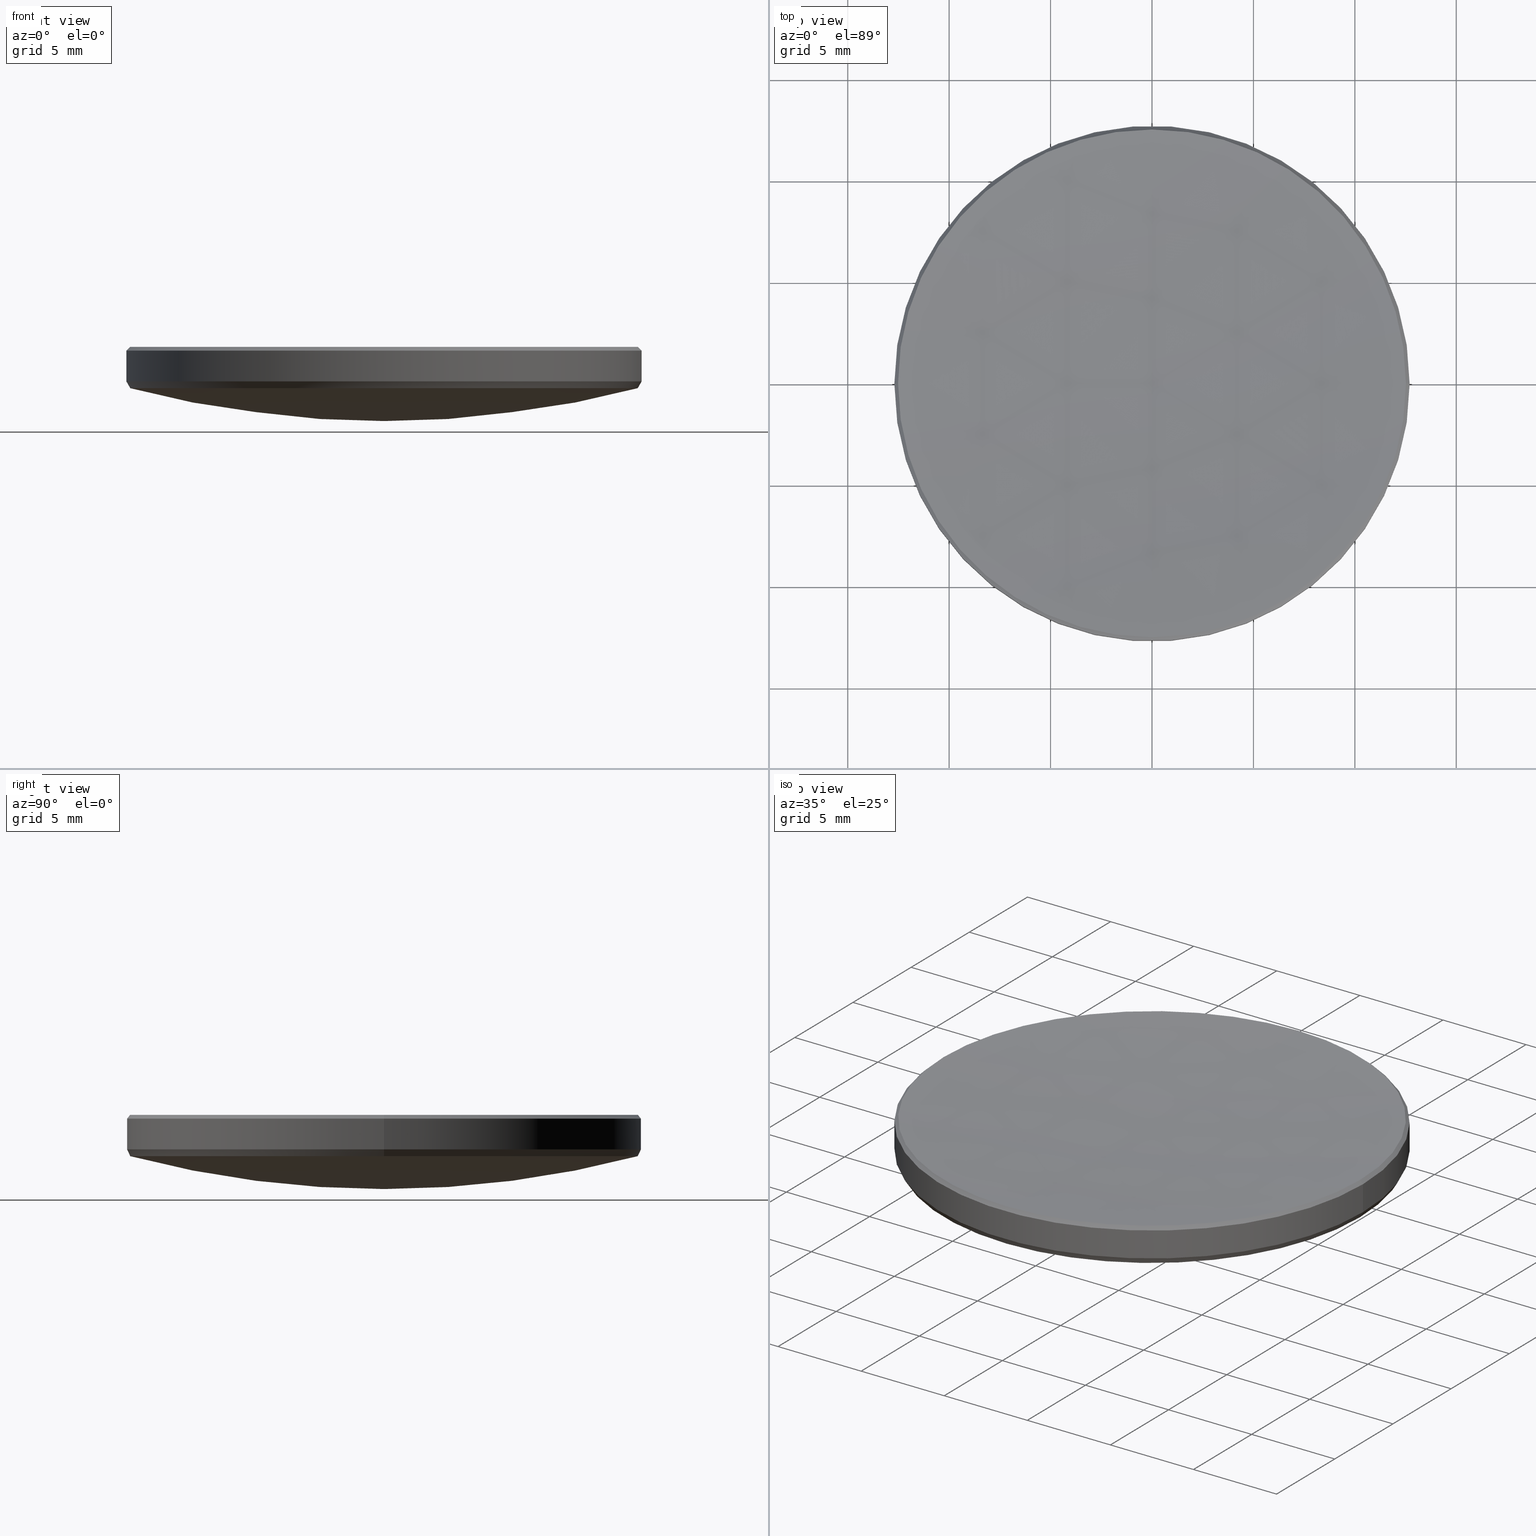
[diagram: canonical four-view strip — front | top / right | iso, engineering-drawing reading convention]
A machine part, canonical four-view strip (front | top / right | iso — engineering-drawing reading convention). The complete STEP part file that produces these views, byte-faithful:
ISO-10303-21;
HEADER;
FILE_DESCRIPTION (( 'STEP AP214' ),
    '1' );
FILE_NAME ('GLM1-025B-150-SWIR.STEP',
    '2024-08-09T02:15:49',
    ( 'Windows User' ),
    ( 'P R C' ),
    'SwSTEP 2.0',
    'SolidWorks 2022',
    '' );
FILE_SCHEMA (( 'AUTOMOTIVE_DESIGN' ));
ENDSEC;

DATA;
#1 =( NAMED_UNIT ( * ) SI_UNIT ( $, .STERADIAN. ) SOLID_ANGLE_UNIT ( ) );
#2 = VERTEX_POINT ( 'NONE', #222 ) ;
#3 = ORIENTED_EDGE ( 'NONE', *, *, #281, .T. ) ;
#4 = EDGE_LOOP ( 'NONE', ( #285, #51, #282, #128 ) ) ;
#5 = PRODUCT_DEFINITION ( 'δ֪', '', #173, #252 ) ;
#6 = ORIENTED_EDGE ( 'NONE', *, *, #74, .F. ) ;
#7 = AXIS2_PLACEMENT_3D ( 'NONE', #55, #16, #12 ) ;
#8 = CARTESIAN_POINT ( 'NONE',  ( 12.51756548749907161, 1.532959650738311713E-15, 5.982434512500911516 ) ) ;
#9 = DIRECTION ( 'NONE',  ( 1.000000000000000000, 0.000000000000000000, 0.000000000000000000 ) ) ;
#10 = CARTESIAN_POINT ( 'NONE',  ( 0.000000000000000000, 0.000000000000000000, 51.38769460524535049 ) ) ;
#11 = DIRECTION ( 'NONE',  ( 1.000000000000000000, 0.000000000000000000, 0.000000000000000000 ) ) ;
#12 = DIRECTION ( 'NONE',  ( -1.000000000000000000, 0.000000000000000000, 0.000000000000000000 ) ) ;
#13 = DIRECTION ( 'NONE',  ( 0.000000000000000000, 0.000000000000000000, -1.000000000000000000 ) ) ;
#14 = AXIS2_PLACEMENT_3D ( 'NONE', #139, #264, #213 ) ;
#15 = CARTESIAN_POINT ( 'NONE',  ( -12.69999999999999929, 0.000000000000000000, 10.00000000000000000 ) ) ;
#16 = DIRECTION ( 'NONE',  ( -0.000000000000000000, -0.000000000000000000, -1.000000000000000000 ) ) ;
#17 = EDGE_CURVE ( 'NONE', #177, #46, #191, .T. ) ;
#18 = CARTESIAN_POINT ( 'NONE',  ( 0.000000000000000000, 0.000000000000000000, 51.38769460524535049 ) ) ;
#19 = MECHANICAL_DESIGN_GEOMETRIC_PRESENTATION_REPRESENTATION (  '', ( #58 ), #81 ) ;
#20 =( NAMED_UNIT ( * ) PLANE_ANGLE_UNIT ( ) SI_UNIT ( $, .RADIAN. ) );
#21 = AXIS2_PLACEMENT_3D ( 'NONE', #190, #321, #36 ) ;
#22 = VERTEX_POINT ( 'NONE', #66 ) ;
#23 = ORIENTED_EDGE ( 'NONE', *, *, #146, .T. ) ;
#24 = VERTEX_POINT ( 'NONE', #34 ) ;
#25 = AXIS2_PLACEMENT_3D ( 'NONE', #56, #67, #166 ) ;
#26 = ADVANCED_FACE ( 'NONE', ( #293 ), #39, .T. ) ;
#27 = ORIENTED_EDGE ( 'NONE', *, *, #242, .F. ) ;
#28 = ORIENTED_EDGE ( 'NONE', *, *, #208, .F. ) ;
#29 = DIRECTION ( 'NONE',  ( -1.000000000000000000, 0.000000000000000000, 0.000000000000000000 ) ) ;
#30 = CIRCLE ( 'NONE', #261, 12.50710445798774728 ) ;
#31 = DIRECTION ( 'NONE',  ( -0.7071067811865777708, 0.000000000000000000, -0.7071067811865172636 ) ) ;
#32 =( LENGTH_UNIT ( ) NAMED_UNIT ( * ) SI_UNIT ( .MILLI., .METRE. ) );
#33 = CARTESIAN_POINT ( 'NONE',  ( 0.000000000000000000, 0.000000000000000000, 4.282866881517001900 ) ) ;
#34 = CARTESIAN_POINT ( 'NONE',  ( -12.51756548749907694, 0.000000000000000000, 5.982434512500911516 ) ) ;
#35 = CARTESIAN_POINT ( 'NONE',  ( 0.000000000000000000, 0.000000000000000000, 5.982434512500911516 ) ) ;
#36 = DIRECTION ( 'NONE',  ( -1.224646799147353207E-16, -1.000000000000000000, 0.000000000000000000 ) ) ;
#37 = DIRECTION ( 'NONE',  ( -0.000000000000000000, -0.000000000000000000, 1.000000000000000000 ) ) ;
#38 = CARTESIAN_POINT ( 'NONE',  ( 12.69999999999999929, 1.555301434917138433E-15, 5.799999999999999822 ) ) ;
#39 = CONICAL_SURFACE ( 'NONE', #296, 12.51756548749907161, 0.7853981633974911336 ) ;
#40 = VECTOR ( 'NONE', #31, 1000.000000000000000 ) ;
#41 = PRODUCT_DEFINITION_SHAPE ( 'NONE', 'NONE',  #5 ) ;
#42 = CARTESIAN_POINT ( 'NONE',  ( -12.69999999999999929, 0.000000000000000000, 4.282866881517001900 ) ) ;
#43 = ADVANCED_FACE ( 'NONE', ( #240 ), #273, .T. ) ;
#44 = AXIS2_PLACEMENT_3D ( 'NONE', #218, #214, #216 ) ;
#45 = DIRECTION ( 'NONE',  ( 1.000000000000000000, 0.000000000000000000, 0.000000000000000000 ) ) ;
#46 = VERTEX_POINT ( 'NONE', #38 ) ;
#47 = AXIS2_PLACEMENT_3D ( 'NONE', #18, #221, #61 ) ;
#48 = SURFACE_SIDE_STYLE ('',( #278 ) ) ;
#49 = ORIENTED_EDGE ( 'NONE', *, *, #319, .T. ) ;
#50 = EDGE_LOOP ( 'NONE', ( #210, #49, #77, #207 ) ) ;
#51 = ORIENTED_EDGE ( 'NONE', *, *, #247, .T. ) ;
#52 = STYLED_ITEM ( 'NONE', ( #103 ), #199 ) ;
#53 = VERTEX_POINT ( 'NONE', #238 ) ;
#54 = CARTESIAN_POINT ( 'NONE',  ( 0.000000000000000000, 0.000000000000000000, 136.9455749538715850 ) ) ;
#55 = CARTESIAN_POINT ( 'NONE',  ( 0.000000000000000000, 0.000000000000000000, 10.00000000000000000 ) ) ;
#56 = CARTESIAN_POINT ( 'NONE',  ( 0.000000000000000000, 0.000000000000000000, 3.948723936848863580 ) ) ;
#57 = DIRECTION ( 'NONE',  ( -0.000000000000000000, -0.000000000000000000, 1.000000000000000000 ) ) ;
#58 = STYLED_ITEM ( 'NONE', ( #274 ), #262 ) ;
#59 = DIRECTION ( 'NONE',  ( 1.000000000000000000, 0.000000000000000000, 0.000000000000000000 ) ) ;
#60 = DIRECTION ( 'NONE',  ( -1.000000000000000000, 1.224646799147353207E-16, 0.000000000000000000 ) ) ;
#61 = DIRECTION ( 'NONE',  ( 0.000000000000000000, 1.000000000000000000, 0.000000000000000000 ) ) ;
#62 = SPHERICAL_SURFACE ( 'NONE', #87, 131.5600000000000023 ) ;
#63 = DIRECTION ( 'NONE',  ( 0.000000000000000000, 0.000000000000000000, -1.000000000000000000 ) ) ;
#64 = ADVANCED_FACE ( 'NONE', ( #286 ), #62, .F. ) ;
#65 = UNCERTAINTY_MEASURE_WITH_UNIT (LENGTH_MEASURE( 1.000000000000000082E-05 ), #98, 'distance_accuracy_value', 'NONE');
#66 = CARTESIAN_POINT ( 'NONE',  ( 12.51756548749907694, 1.544130542827725172E-15, 5.982434512500911516 ) ) ;
#67 = DIRECTION ( 'NONE',  ( 0.000000000000000000, 0.000000000000000000, -1.000000000000000000 ) ) ;
#68 = SPHERICAL_SURFACE ( 'NONE', #47, 49.05999999999999517 ) ;
#69 = CIRCLE ( 'NONE', #88, 12.51756548749907694 ) ;
#70 = VECTOR ( 'NONE', #289, 1000.000000000000000 ) ;
#71 = FACE_OUTER_BOUND ( 'NONE', #4, .T. ) ;
#72 = AXIS2_PLACEMENT_3D ( 'NONE', #248, #45, #175 ) ;
#73 = SURFACE_STYLE_FILL_AREA ( #304 ) ;
#74 = EDGE_CURVE ( 'NONE', #277, #180, #324, .T. ) ;
#75 = ORIENTED_EDGE ( 'NONE', *, *, #266, .T. ) ;
#76 = CONICAL_SURFACE ( 'NONE', #123, 12.51756548749907161, 0.7853981633974911336 ) ;
#77 = ORIENTED_EDGE ( 'NONE', *, *, #135, .T. ) ;
#78 = ADVANCED_FACE ( 'NONE', ( #92 ), #120, .T. ) ;
#79 = ORIENTED_EDGE ( 'NONE', *, *, #271, .F. ) ;
#80 = ORIENTED_EDGE ( 'NONE', *, *, #146, .F. ) ;
#81 =( GEOMETRIC_REPRESENTATION_CONTEXT ( 3 ) GLOBAL_UNCERTAINTY_ASSIGNED_CONTEXT ( ( #65 ) ) GLOBAL_UNIT_ASSIGNED_CONTEXT ( ( #98, #20, #179 ) ) REPRESENTATION_CONTEXT ( 'NONE', 'WORKASPACE' ) );
#82 = DIRECTION ( 'NONE',  ( 0.000000000000000000, 0.000000000000000000, -1.000000000000000000 ) ) ;
#83 = CYLINDRICAL_SURFACE ( 'NONE', #7, 12.69999999999999929 ) ;
#84 = LINE ( 'NONE', #159, #211 ) ;
#85 = FACE_OUTER_BOUND ( 'NONE', #253, .T. ) ;
#86 = DIRECTION ( 'NONE',  ( 0.000000000000000000, 0.000000000000000000, -1.000000000000000000 ) ) ;
#87 = AXIS2_PLACEMENT_3D ( 'NONE', #54, #143, #318 ) ;
#88 = AXIS2_PLACEMENT_3D ( 'NONE', #115, #57, #249 ) ;
#89 = PRESENTATION_LAYER_ASSIGNMENT (  '', '', ( #52 ) ) ;
#90 = CARTESIAN_POINT ( 'NONE',  ( -12.51756548749907161, 0.000000000000000000, 5.982434512500911516 ) ) ;
#91 = ADVANCED_FACE ( 'NONE', ( #186 ), #83, .T. ) ;
#92 = FACE_OUTER_BOUND ( 'NONE', #196, .T. ) ;
#93 = PRODUCT ( 'GLM1-025B-150-SWIR', 'GLM1-025B-150-SWIR', '', ( #300 ) ) ;
#94 = CARTESIAN_POINT ( 'NONE',  ( -12.69999999999999929, 0.000000000000000000, 5.799999999999999822 ) ) ;
#95 = DIRECTION ( 'NONE',  ( 1.000000000000000000, 0.000000000000000000, 0.000000000000000000 ) ) ;
#97 = ADVANCED_FACE ( 'NONE', ( #156 ), #269, .T. ) ;
#96 = AXIS2_PLACEMENT_3D ( 'NONE', #305, #181, #86 ) ;
#98 =( LENGTH_UNIT ( ) NAMED_UNIT ( * ) SI_UNIT ( .MILLI., .METRE. ) );
#99 = FILL_AREA_STYLE_COLOUR ( '', #172 ) ;
#100 = COLOUR_RGB ( '',1.000000000000000000, 1.000000000000000000, 1.000000000000000000 ) ;
#101 = EDGE_CURVE ( 'NONE', #234, #180, #212, .T. ) ;
#102 = CARTESIAN_POINT ( 'NONE',  ( 0.000000000000000000, 0.000000000000000000, 0.000000000000000000 ) ) ;
#103 = PRESENTATION_STYLE_ASSIGNMENT (( #250 ) ) ;
#104 = VERTEX_POINT ( 'NONE', #236 ) ;
#105 = DIRECTION ( 'NONE',  ( 1.000000000000000000, 0.000000000000000000, 0.000000000000000000 ) ) ;
#106 = EDGE_CURVE ( 'NONE', #256, #234, #84, .T. ) ;
#107 = ORIENTED_EDGE ( 'NONE', *, *, #201, .T. ) ;
#108 = ORIENTED_EDGE ( 'NONE', *, *, #227, .F. ) ;
#109 = ORIENTED_EDGE ( 'NONE', *, *, #17, .T. ) ;
#110 = ORIENTED_EDGE ( 'NONE', *, *, #313, .F. ) ;
#111 = CIRCLE ( 'NONE', #279, 12.51756548749907694 ) ;
#112 = AXIS2_PLACEMENT_3D ( 'NONE', #102, #203, #105 ) ;
#113 = DIRECTION ( 'NONE',  ( 0.7071067811865777708, 8.659560562355303869E-17, -0.7071067811865172636 ) ) ;
#114 = LINE ( 'NONE', #263, #154 ) ;
#115 = CARTESIAN_POINT ( 'NONE',  ( 0.000000000000000000, 0.000000000000000000, 5.982434512500911516 ) ) ;
#116 = LINE ( 'NONE', #8, #237 ) ;
#117 = DIRECTION ( 'NONE',  ( -0.4999572784161532835, 6.122710807227642125E-17, 0.8660500676974242085 ) ) ;
#118 = AXIS2_PLACEMENT_3D ( 'NONE', #138, #320, #241 ) ;
#119 = AXIS2_PLACEMENT_3D ( 'NONE', #270, #200, #299 ) ;
#120 = SPHERICAL_SURFACE ( 'NONE', #302, 49.05999999999999517 ) ;
#121 = EDGE_CURVE ( 'NONE', #22, #46, #116, .T. ) ;
#122 = DIRECTION ( 'NONE',  ( 0.000000000000000000, 1.000000000000000000, 0.000000000000000000 ) ) ;
#123 = AXIS2_PLACEMENT_3D ( 'NONE', #223, #63, #164 ) ;
#124 = EDGE_CURVE ( 'NONE', #53, #277, #125, .T. ) ;
#125 = CIRCLE ( 'NONE', #44, 12.50710445798774728 ) ;
#126 = ORIENTED_EDGE ( 'NONE', *, *, #306, .F. ) ;
#127 = ORIENTED_EDGE ( 'NONE', *, *, #124, .F. ) ;
#128 = ORIENTED_EDGE ( 'NONE', *, *, #242, .T. ) ;
#129 = EDGE_LOOP ( 'NONE', ( #126, #251, #206, #315, #233 ) ) ;
#130 = VERTEX_POINT ( 'NONE', #316 ) ;
#131 = EDGE_CURVE ( 'NONE', #24, #177, #136, .T. ) ;
#132 = DIRECTION ( 'NONE',  ( -0.000000000000000000, -0.000000000000000000, 1.000000000000000000 ) ) ;
#133 = CIRCLE ( 'NONE', #314, 49.05999999999999517 ) ;
#134 = DIRECTION ( 'NONE',  ( -1.000000000000000000, 0.000000000000000000, 0.000000000000000000 ) ) ;
#135 = EDGE_CURVE ( 'NONE', #2, #22, #111, .T. ) ;
#136 = LINE ( 'NONE', #90, #40 ) ;
#137 = CYLINDRICAL_SURFACE ( 'NONE', #14, 12.69999999999999929 ) ;
#138 = CARTESIAN_POINT ( 'NONE',  ( 0.000000000000000000, 0.000000000000000000, 4.282866881517001900 ) ) ;
#139 = CARTESIAN_POINT ( 'NONE',  ( 0.000000000000000000, 0.000000000000000000, 10.00000000000000000 ) ) ;
#140 = DIRECTION ( 'NONE',  ( 1.000000000000000000, 0.000000000000000000, 0.000000000000000000 ) ) ;
#141 = AXIS2_PLACEMENT_3D ( 'NONE', #295, #225, #95 ) ;
#142 = UNCERTAINTY_MEASURE_WITH_UNIT (LENGTH_MEASURE( 1.000000000000000082E-05 ), #32, 'distance_accuracy_value', 'NONE');
#143 = DIRECTION ( 'NONE',  ( -1.000000000000000000, 0.000000000000000000, 0.000000000000000000 ) ) ;
#144 = FACE_OUTER_BOUND ( 'NONE', #209, .T. ) ;
#145 = CIRCLE ( 'NONE', #141, 12.50710445798774728 ) ;
#146 = EDGE_CURVE ( 'NONE', #180, #234, #255, .T. ) ;
#147 = SHAPE_DEFINITION_REPRESENTATION ( #41, #199 ) ;
#148 = ORIENTED_EDGE ( 'NONE', *, *, #227, .T. ) ;
#149 = ADVANCED_FACE ( 'NONE', ( #71 ), #246, .F. ) ;
#150 = VERTEX_POINT ( 'NONE', #325 ) ;
#151 = EDGE_LOOP ( 'NONE', ( #109, #3, #310, #108 ) ) ;
#152 = ORIENTED_EDGE ( 'NONE', *, *, #271, .T. ) ;
#153 = VECTOR ( 'NONE', #117, 1000.000000000000000 ) ;
#154 = VECTOR ( 'NONE', #317, 1000.000000000000000 ) ;
#155 = ORIENTED_EDGE ( 'NONE', *, *, #182, .T. ) ;
#156 = FACE_OUTER_BOUND ( 'NONE', #230, .T. ) ;
#157 = DIRECTION ( 'NONE',  ( -0.000000000000000000, -0.000000000000000000, 1.000000000000000000 ) ) ;
#158 = DIRECTION ( 'NONE',  ( 0.000000000000000000, 0.000000000000000000, -1.000000000000000000 ) ) ;
#159 = CARTESIAN_POINT ( 'NONE',  ( 12.69999999999999929, 0.000000000000000000, 4.282866881517001900 ) ) ;
#160 = APPLICATION_CONTEXT ( 'automotive_design' ) ;
#161 = CARTESIAN_POINT ( 'NONE',  ( -12.50710445798774728, 1.543489989512383738E-15, 3.948723936848863580 ) ) ;
#162 = CIRCLE ( 'NONE', #72, 131.5600000000000023 ) ;
#163 = ORIENTED_EDGE ( 'NONE', *, *, #292, .T. ) ;
#164 = DIRECTION ( 'NONE',  ( -1.000000000000000000, 0.000000000000000000, 0.000000000000000000 ) ) ;
#165 = DIRECTION ( 'NONE',  ( 0.4999572784161532835, 0.000000000000000000, 0.8660500676974242085 ) ) ;
#166 = DIRECTION ( 'NONE',  ( 1.000000000000000000, 0.000000000000000000, 0.000000000000000000 ) ) ;
#167 = DIRECTION ( 'NONE',  ( 0.000000000000000000, 0.000000000000000000, -1.000000000000000000 ) ) ;
#168 = CARTESIAN_POINT ( 'NONE',  ( 0.000000000000000000, 0.000000000000000000, 5.982434512500911516 ) ) ;
#169 = CLOSED_SHELL ( 'NONE', ( #303, #43, #64, #78, #329, #91, #187, #149, #97, #26 ) ) ;
#170 = CIRCLE ( 'NONE', #25, 12.50710445798774728 ) ;
#171 = SURFACE_STYLE_USAGE ( .BOTH. , #48 ) ;
#172 = COLOUR_RGB ( '',1.000000000000000000, 1.000000000000000000, 1.000000000000000000 ) ;
#173 = PRODUCT_DEFINITION_FORMATION_WITH_SPECIFIED_SOURCE ( '�κ�', '', #93, .NOT_KNOWN. ) ;
#174 = EDGE_LOOP ( 'NONE', ( #332, #107, #148, #23 ) ) ;
#175 = DIRECTION ( 'NONE',  ( 0.000000000000000000, 0.000000000000000000, -1.000000000000000000 ) ) ;
#176 = CIRCLE ( 'NONE', #96, 49.05999999999999517 ) ;
#177 = VERTEX_POINT ( 'NONE', #94 ) ;
#178 = ORIENTED_EDGE ( 'NONE', *, *, #17, .F. ) ;
#179 =( NAMED_UNIT ( * ) SI_UNIT ( $, .STERADIAN. ) SOLID_ANGLE_UNIT ( ) );
#180 = VERTEX_POINT ( 'NONE', #42 ) ;
#181 = DIRECTION ( 'NONE',  ( 1.000000000000000000, -0.000000000000000000, 0.000000000000000000 ) ) ;
#182 = EDGE_CURVE ( 'NONE', #256, #53, #145, .T. ) ;
#183 = ORIENTED_EDGE ( 'NONE', *, *, #201, .F. ) ;
#184 = AXIS2_PLACEMENT_3D ( 'NONE', #294, #82, #59 ) ;
#185 = DIRECTION ( 'NONE',  ( 0.000000000000000000, 1.000000000000000000, 0.000000000000000000 ) ) ;
#186 = FACE_OUTER_BOUND ( 'NONE', #174, .T. ) ;
#187 = ADVANCED_FACE ( 'NONE', ( #144 ), #68, .T. ) ;
#188 = CARTESIAN_POINT ( 'NONE',  ( 0.000000000000000000, 0.000000000000000000, 3.948723936848863580 ) ) ;
#189 = CARTESIAN_POINT ( 'NONE',  ( 0.000000000000000000, 0.000000000000000000, 5.982434512500911516 ) ) ;
#190 = CARTESIAN_POINT ( 'NONE',  ( 0.000000000000000000, 0.000000000000000000, 136.9455749538715850 ) ) ;
#191 = CIRCLE ( 'NONE', #184, 12.69999999999999929 ) ;
#192 = AXIS2_PLACEMENT_3D ( 'NONE', #35, #157, #9 ) ;
#193 = FACE_OUTER_BOUND ( 'NONE', #151, .T. ) ;
#194 = DIRECTION ( 'NONE',  ( 1.000000000000000000, 0.000000000000000000, 0.000000000000000000 ) ) ;
#195 = CARTESIAN_POINT ( 'NONE',  ( 0.000000000000000000, 0.000000000000000000, 5.982434512500911516 ) ) ;
#196 = EDGE_LOOP ( 'NONE', ( #204, #152, #307, #232 ) ) ;
#197 =( LENGTH_UNIT ( ) NAMED_UNIT ( * ) SI_UNIT ( .MILLI., .METRE. ) );
#198 = CARTESIAN_POINT ( 'NONE',  ( 12.69999999999999929, 1.555301434917138433E-15, 4.282866881517001900 ) ) ;
#199 = ADVANCED_BREP_SHAPE_REPRESENTATION ( 'GLM1-025B-150-SWIR', ( #262, #112 ), #275 ) ;
#200 = DIRECTION ( 'NONE',  ( -0.000000000000000000, -0.000000000000000000, 1.000000000000000000 ) ) ;
#201 = EDGE_CURVE ( 'NONE', #46, #177, #330, .T. ) ;
#202 = SURFACE_SIDE_STYLE ('',( #73 ) ) ;
#203 = DIRECTION ( 'NONE',  ( 0.000000000000000000, 0.000000000000000000, 1.000000000000000000 ) ) ;
#204 = ORIENTED_EDGE ( 'NONE', *, *, #266, .F. ) ;
#205 = AXIS2_PLACEMENT_3D ( 'NONE', #272, #326, #122 ) ;
#206 = ORIENTED_EDGE ( 'NONE', *, *, #101, .F. ) ;
#207 = ORIENTED_EDGE ( 'NONE', *, *, #313, .T. ) ;
#208 = EDGE_CURVE ( 'NONE', #267, #24, #228, .T. ) ;
#209 = EDGE_LOOP ( 'NONE', ( #79, #75, #163, #155 ) ) ;
#210 = ORIENTED_EDGE ( 'NONE', *, *, #247, .F. ) ;
#211 = VECTOR ( 'NONE', #165, 1000.000000000000000 ) ;
#212 = CIRCLE ( 'NONE', #291, 12.69999999999999929 ) ;
#213 = DIRECTION ( 'NONE',  ( -1.000000000000000000, 0.000000000000000000, 0.000000000000000000 ) ) ;
#214 = DIRECTION ( 'NONE',  ( 0.000000000000000000, 0.000000000000000000, -1.000000000000000000 ) ) ;
#215 = APPLICATION_CONTEXT ( 'automotive_design' ) ;
#216 = DIRECTION ( 'NONE',  ( 1.000000000000000000, 0.000000000000000000, 0.000000000000000000 ) ) ;
#217 =( NAMED_UNIT ( * ) PLANE_ANGLE_UNIT ( ) SI_UNIT ( $, .RADIAN. ) );
#218 = CARTESIAN_POINT ( 'NONE',  ( 0.000000000000000000, 0.000000000000000000, 3.948723936848863580 ) ) ;
#219 = CARTESIAN_POINT ( 'NONE',  ( 0.000000000000000000, 12.51756548749897568, 5.982434512500911516 ) ) ;
#220 = CIRCLE ( 'NONE', #192, 12.51756548749907694 ) ;
#221 = DIRECTION ( 'NONE',  ( -1.000000000000000000, 0.000000000000000000, 0.000000000000000000 ) ) ;
#222 = CARTESIAN_POINT ( 'NONE',  ( -1.532959650738299683E-15, -12.51756548749897568, 5.982434512500911516 ) ) ;
#223 = CARTESIAN_POINT ( 'NONE',  ( 0.000000000000000000, 0.000000000000000000, 5.982434512500911516 ) ) ;
#224 = CARTESIAN_POINT ( 'NONE',  ( 0.000000000000000000, 0.000000000000000000, 5.799999999999999822 ) ) ;
#225 = DIRECTION ( 'NONE',  ( 0.000000000000000000, 0.000000000000000000, -1.000000000000000000 ) ) ;
#226 = AXIS2_PLACEMENT_3D ( 'NONE', #195, #37, #140 ) ;
#227 = EDGE_CURVE ( 'NONE', #177, #180, #244, .T. ) ;
#228 = CIRCLE ( 'NONE', #226, 12.51756548749907694 ) ;
#229 =( NAMED_UNIT ( * ) PLANE_ANGLE_UNIT ( ) SI_UNIT ( $, .RADIAN. ) );
#230 = EDGE_LOOP ( 'NONE', ( #6, #127, #254, #312, #80 ) ) ;
#231 = APPLICATION_PROTOCOL_DEFINITION ( 'draft international standard', 'automotive_design', 1998, #160 ) ;
#232 = ORIENTED_EDGE ( 'NONE', *, *, #306, .T. ) ;
#233 = ORIENTED_EDGE ( 'NONE', *, *, #292, .F. ) ;
#234 = VERTEX_POINT ( 'NONE', #198 ) ;
#235 = ORIENTED_EDGE ( 'NONE', *, *, #121, .F. ) ;
#236 = CARTESIAN_POINT ( 'NONE',  ( 0.000000000000000000, 8.055726644791288963E-15, 5.385574953871569370 ) ) ;
#237 = VECTOR ( 'NONE', #113, 1000.000000000000000 ) ;
#238 = CARTESIAN_POINT ( 'NONE',  ( -1.531678544107628650E-15, -12.50710445798775083, 3.948723936848860028 ) ) ;
#239 = CARTESIAN_POINT ( 'NONE',  ( 0.000000000000000000, 0.000000000000000000, 51.38769460524535049 ) ) ;
#240 = FACE_OUTER_BOUND ( 'NONE', #129, .T. ) ;
#241 = DIRECTION ( 'NONE',  ( 1.000000000000000000, 0.000000000000000000, 0.000000000000000000 ) ) ;
#242 = EDGE_CURVE ( 'NONE', #24, #2, #69, .T. ) ;
#243 =( GEOMETRIC_REPRESENTATION_CONTEXT ( 3 ) GLOBAL_UNCERTAINTY_ASSIGNED_CONTEXT ( ( #298 ) ) GLOBAL_UNIT_ASSIGNED_CONTEXT ( ( #197, #229, #1 ) ) REPRESENTATION_CONTEXT ( 'NONE', 'WORKASPACE' ) );
#244 = LINE ( 'NONE', #15, #70 ) ;
#245 = CARTESIAN_POINT ( 'NONE',  ( -12.69999999999999929, 1.555301434917138433E-15, 4.282866881517001900 ) ) ;
#246 = SPHERICAL_SURFACE ( 'NONE', #205, 131.5600000000000023 ) ;
#247 = EDGE_CURVE ( 'NONE', #104, #267, #162, .T. ) ;
#248 = CARTESIAN_POINT ( 'NONE',  ( 0.000000000000000000, 0.000000000000000000, 136.9455749538715850 ) ) ;
#249 = DIRECTION ( 'NONE',  ( 1.000000000000000000, 0.000000000000000000, 0.000000000000000000 ) ) ;
#250 = SURFACE_STYLE_USAGE ( .BOTH. , #202 ) ;
#251 = ORIENTED_EDGE ( 'NONE', *, *, #74, .T. ) ;
#252 = PRODUCT_DEFINITION_CONTEXT ( 'detailed design', #215, 'design' ) ;
#253 = EDGE_LOOP ( 'NONE', ( #110, #280, #178, #287, #28 ) ) ;
#254 = ORIENTED_EDGE ( 'NONE', *, *, #182, .F. ) ;
#255 = CIRCLE ( 'NONE', #119, 12.69999999999999929 ) ;
#256 = VERTEX_POINT ( 'NONE', #331 ) ;
#257 =( NAMED_UNIT ( * ) SI_UNIT ( $, .STERADIAN. ) SOLID_ANGLE_UNIT ( ) );
#258 = EDGE_LOOP ( 'NONE', ( #235, #283, #27, #311, #183 ) ) ;
#259 = DIRECTION ( 'NONE',  ( -0.000000000000000000, -0.000000000000000000, 1.000000000000000000 ) ) ;
#260 = DIRECTION ( 'NONE',  ( 1.000000000000000000, 0.000000000000000000, 0.000000000000000000 ) ) ;
#261 = AXIS2_PLACEMENT_3D ( 'NONE', #188, #158, #11 ) ;
#262 = MANIFOLD_SOLID_BREP ( '����1', #169 ) ;
#263 = CARTESIAN_POINT ( 'NONE',  ( 12.69999999999999929, 1.555301434917138433E-15, 10.00000000000000000 ) ) ;
#264 = DIRECTION ( 'NONE',  ( -0.000000000000000000, -0.000000000000000000, -1.000000000000000000 ) ) ;
#265 = CARTESIAN_POINT ( 'NONE',  ( 0.000000000000000000, 0.000000000000000000, 4.282866881517001900 ) ) ;
#266 = EDGE_CURVE ( 'NONE', #150, #130, #176, .T. ) ;
#267 = VERTEX_POINT ( 'NONE', #219 ) ;
#268 = DIRECTION ( 'NONE',  ( -1.000000000000000000, 0.000000000000000000, 0.000000000000000000 ) ) ;
#269 = CONICAL_SURFACE ( 'NONE', #327, 12.69999999999999929, 0.5235494456648849271 ) ;
#270 = CARTESIAN_POINT ( 'NONE',  ( 0.000000000000000000, 0.000000000000000000, 4.282866881517001900 ) ) ;
#271 = EDGE_CURVE ( 'NONE', #150, #53, #133, .T. ) ;
#272 = CARTESIAN_POINT ( 'NONE',  ( 0.000000000000000000, 0.000000000000000000, 136.9455749538715850 ) ) ;
#273 = CONICAL_SURFACE ( 'NONE', #118, 12.69999999999999929, 0.5235494456648849271 ) ;
#274 = PRESENTATION_STYLE_ASSIGNMENT (( #171 ) ) ;
#275 =( GEOMETRIC_REPRESENTATION_CONTEXT ( 3 ) GLOBAL_UNCERTAINTY_ASSIGNED_CONTEXT ( ( #142 ) ) GLOBAL_UNIT_ASSIGNED_CONTEXT ( ( #32, #217, #257 ) ) REPRESENTATION_CONTEXT ( 'NONE', 'WORKASPACE' ) );
#276 = PRODUCT_RELATED_PRODUCT_CATEGORY ( 'part', '', ( #93 ) ) ;
#277 = VERTEX_POINT ( 'NONE', #161 ) ;
#278 = SURFACE_STYLE_FILL_AREA ( #301 ) ;
#279 = AXIS2_PLACEMENT_3D ( 'NONE', #189, #290, #194 ) ;
#280 = ORIENTED_EDGE ( 'NONE', *, *, #121, .T. ) ;
#281 = EDGE_CURVE ( 'NONE', #46, #234, #114, .T. ) ;
#282 = ORIENTED_EDGE ( 'NONE', *, *, #208, .T. ) ;
#283 = ORIENTED_EDGE ( 'NONE', *, *, #135, .F. ) ;
#284 = PRESENTATION_LAYER_ASSIGNMENT (  '', '', ( #58 ) ) ;
#285 = ORIENTED_EDGE ( 'NONE', *, *, #319, .F. ) ;
#286 = FACE_OUTER_BOUND ( 'NONE', #50, .T. ) ;
#287 = ORIENTED_EDGE ( 'NONE', *, *, #131, .F. ) ;
#288 = DIRECTION ( 'NONE',  ( -1.224646799147353207E-16, -1.000000000000000000, 0.000000000000000000 ) ) ;
#289 = DIRECTION ( 'NONE',  ( -0.000000000000000000, -0.000000000000000000, -1.000000000000000000 ) ) ;
#290 = DIRECTION ( 'NONE',  ( -0.000000000000000000, -0.000000000000000000, 1.000000000000000000 ) ) ;
#291 = AXIS2_PLACEMENT_3D ( 'NONE', #265, #132, #29 ) ;
#292 = EDGE_CURVE ( 'NONE', #130, #256, #30, .T. ) ;
#293 = FACE_OUTER_BOUND ( 'NONE', #258, .T. ) ;
#294 = CARTESIAN_POINT ( 'NONE',  ( 0.000000000000000000, 0.000000000000000000, 5.799999999999999822 ) ) ;
#295 = CARTESIAN_POINT ( 'NONE',  ( 0.000000000000000000, 0.000000000000000000, 3.948723936848863580 ) ) ;
#296 = AXIS2_PLACEMENT_3D ( 'NONE', #168, #13, #268 ) ;
#297 = DIRECTION ( 'NONE',  ( 1.000000000000000000, 0.000000000000000000, 0.000000000000000000 ) ) ;
#298 = UNCERTAINTY_MEASURE_WITH_UNIT (LENGTH_MEASURE( 1.000000000000000082E-05 ), #197, 'distance_accuracy_value', 'NONE');
#299 = DIRECTION ( 'NONE',  ( -1.000000000000000000, 0.000000000000000000, 0.000000000000000000 ) ) ;
#300 = PRODUCT_CONTEXT ( 'NONE', #160, 'mechanical' ) ;
#301 = FILL_AREA_STYLE ('',( #328 ) ) ;
#303 = ADVANCED_FACE ( 'NONE', ( #85 ), #76, .T. ) ;
#302 = AXIS2_PLACEMENT_3D ( 'NONE', #10, #134, #185 ) ;
#304 = FILL_AREA_STYLE ('',( #99 ) ) ;
#305 = CARTESIAN_POINT ( 'NONE',  ( 0.000000000000000000, 0.000000000000000000, 51.38769460524535049 ) ) ;
#306 = EDGE_CURVE ( 'NONE', #277, #130, #170, .T. ) ;
#307 = ORIENTED_EDGE ( 'NONE', *, *, #124, .T. ) ;
#308 = AXIS2_PLACEMENT_3D ( 'NONE', #224, #167, #297 ) ;
#309 = APPLICATION_PROTOCOL_DEFINITION ( 'draft international standard', 'automotive_design', 1998, #215 ) ;
#310 = ORIENTED_EDGE ( 'NONE', *, *, #101, .T. ) ;
#311 = ORIENTED_EDGE ( 'NONE', *, *, #131, .T. ) ;
#312 = ORIENTED_EDGE ( 'NONE', *, *, #106, .T. ) ;
#313 = EDGE_CURVE ( 'NONE', #22, #267, #220, .T. ) ;
#314 = AXIS2_PLACEMENT_3D ( 'NONE', #239, #60, #288 ) ;
#315 = ORIENTED_EDGE ( 'NONE', *, *, #106, .F. ) ;
#316 = CARTESIAN_POINT ( 'NONE',  ( 0.000000000000000000, 12.50710445798775083, 3.948723936848860028 ) ) ;
#317 = DIRECTION ( 'NONE',  ( -0.000000000000000000, -0.000000000000000000, -1.000000000000000000 ) ) ;
#318 = DIRECTION ( 'NONE',  ( 0.000000000000000000, 1.000000000000000000, 0.000000000000000000 ) ) ;
#319 = EDGE_CURVE ( 'NONE', #104, #2, #322, .T. ) ;
#320 = DIRECTION ( 'NONE',  ( -0.000000000000000000, -0.000000000000000000, 1.000000000000000000 ) ) ;
#321 = DIRECTION ( 'NONE',  ( -1.000000000000000000, 1.224646799147353207E-16, 0.000000000000000000 ) ) ;
#322 = CIRCLE ( 'NONE', #21, 131.5600000000000023 ) ;
#323 = MECHANICAL_DESIGN_GEOMETRIC_PRESENTATION_REPRESENTATION (  '', ( #52 ), #243 ) ;
#324 = LINE ( 'NONE', #245, #153 ) ;
#325 = CARTESIAN_POINT ( 'NONE',  ( 0.000000000000000000, 3.004058598308457002E-15, 2.327694605245358872 ) ) ;
#326 = DIRECTION ( 'NONE',  ( -1.000000000000000000, 0.000000000000000000, 0.000000000000000000 ) ) ;
#327 = AXIS2_PLACEMENT_3D ( 'NONE', #33, #259, #260 ) ;
#328 = FILL_AREA_STYLE_COLOUR ( '', #100 ) ;
#329 = ADVANCED_FACE ( 'NONE', ( #193 ), #137, .T. ) ;
#330 = CIRCLE ( 'NONE', #308, 12.69999999999999929 ) ;
#331 = CARTESIAN_POINT ( 'NONE',  ( 12.50710445798774728, 0.000000000000000000, 3.948723936848863580 ) ) ;
#332 = ORIENTED_EDGE ( 'NONE', *, *, #281, .F. ) ;
ENDSEC;
END-ISO-10303-21;
